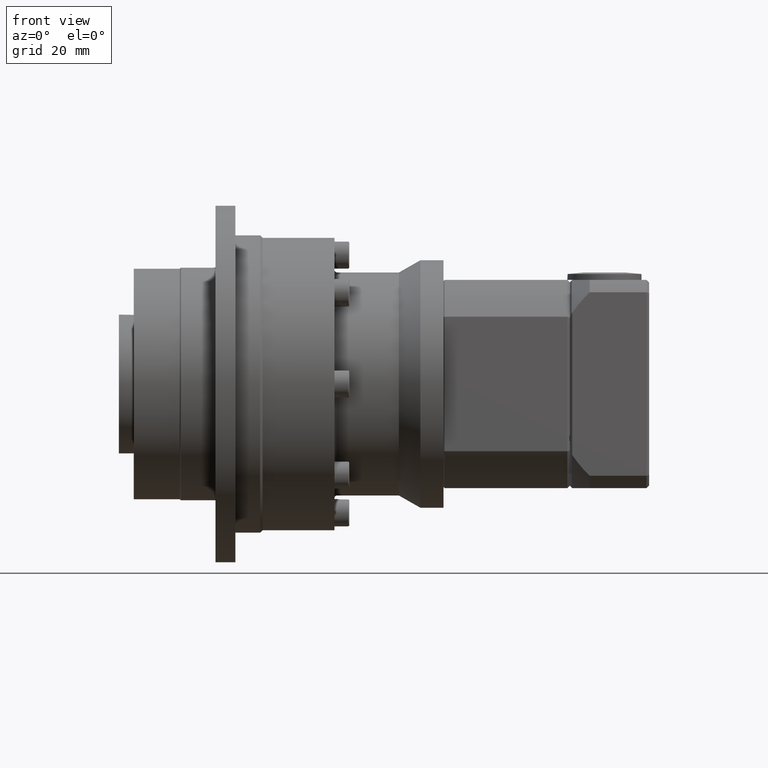
[diagram: clean part render]
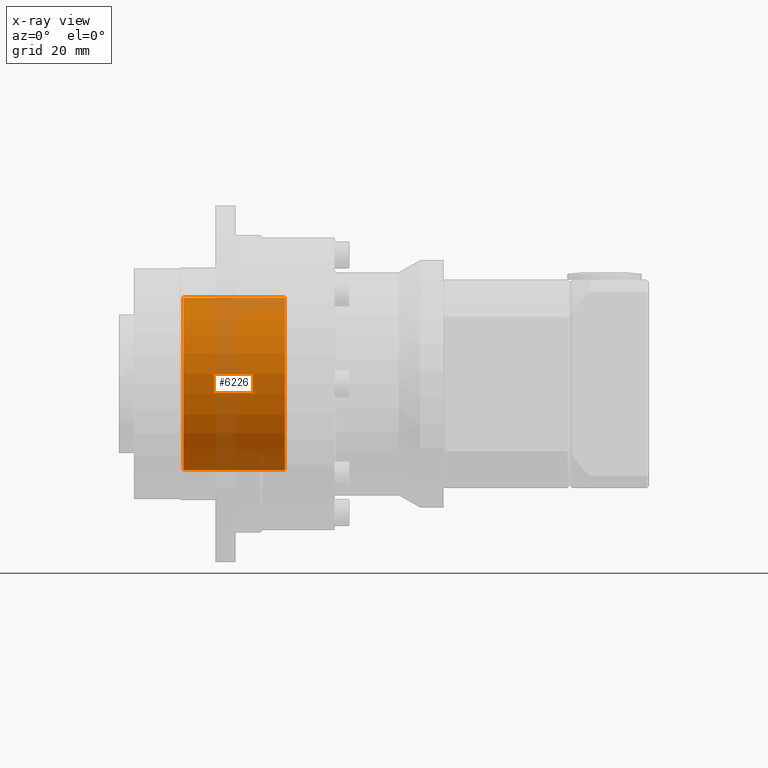
[diagram: x-ray — body ghosted, one internal face saturated and labeled with its STEP entity id]
A machine part, front view, then the same camera in x-ray: the body is ghosted and one INTERNAL B-rep face — a face not visible from any outside direction — is saturated and labeled: STEP entity #6226.
In plain terms, the highlighted cylindrical surface (bore or boss wall) has radius 17.41 mm, axis along (-1, 0, -0).
Its self-contained STEP definition (entity closure, byte-faithful):
#1177=CYLINDRICAL_SURFACE('',#6720,17.41);
#1305=FACE_BOUND('',#2041,.T.);
#1574=FACE_OUTER_BOUND('',#2040,.T.);
#2040=EDGE_LOOP('',(#4476));
#2041=EDGE_LOOP('',(#4477));
#2750=CIRCLE('',#6719,17.41);
#2751=CIRCLE('',#6721,17.41);
#3107=VERTEX_POINT('',#9460);
#3108=VERTEX_POINT('',#9463);
#3688=EDGE_CURVE('',#3107,#3107,#2750,.T.);
#3689=EDGE_CURVE('',#3108,#3108,#2751,.T.);
#4476=ORIENTED_EDGE('',*,*,#3688,.T.);
#4477=ORIENTED_EDGE('',*,*,#3689,.F.);
#6226=ADVANCED_FACE('',(#1574,#1305),#1177,.F.);
#6719=AXIS2_PLACEMENT_3D('',#9461,#7562,#7563);
#6720=AXIS2_PLACEMENT_3D('',#9462,#7564,#7565);
#6721=AXIS2_PLACEMENT_3D('',#9464,#7566,#7567);
#7562=DIRECTION('center_axis',(-1.,2.06779038336434E-15,-1.83973716379629E-15));
#7563=DIRECTION('ref_axis',(-1.83973716379629E-15,-5.03803729503249E-16,
1.));
#7564=DIRECTION('center_axis',(-1.,2.06779038336434E-15,-1.83973716379629E-15));
#7565=DIRECTION('ref_axis',(-1.83973716379629E-15,-5.03803729503249E-16,
1.));
#7566=DIRECTION('center_axis',(-1.,2.06779038336434E-15,-1.83973716379629E-15));
#7567=DIRECTION('ref_axis',(-1.83973716379629E-15,-5.03803729503249E-16,
1.));
#9460=CARTESIAN_POINT('',(-30.1735513823496,4.40512708845815,-78.7951948421757));
#9461=CARTESIAN_POINT('Origin',(-30.1735513823496,4.40512708845815,-61.3851948421757));
#9462=CARTESIAN_POINT('Origin',(-9.67355138234958,4.4051270884581,-61.3851948421756));
#9463=CARTESIAN_POINT('',(-9.67355138234955,4.40512708845811,-78.7951948421756));
#9464=CARTESIAN_POINT('Origin',(-9.67355138234958,4.4051270884581,-61.3851948421756));